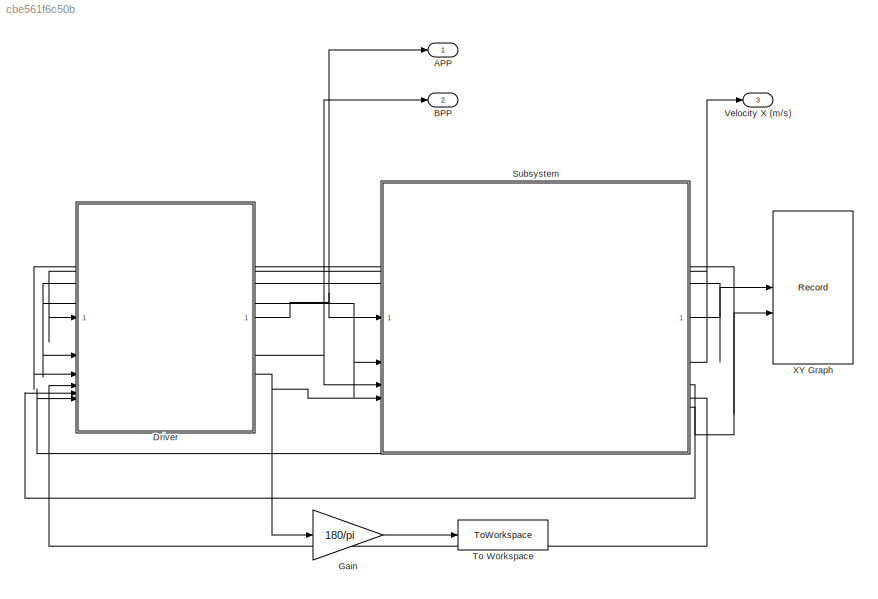
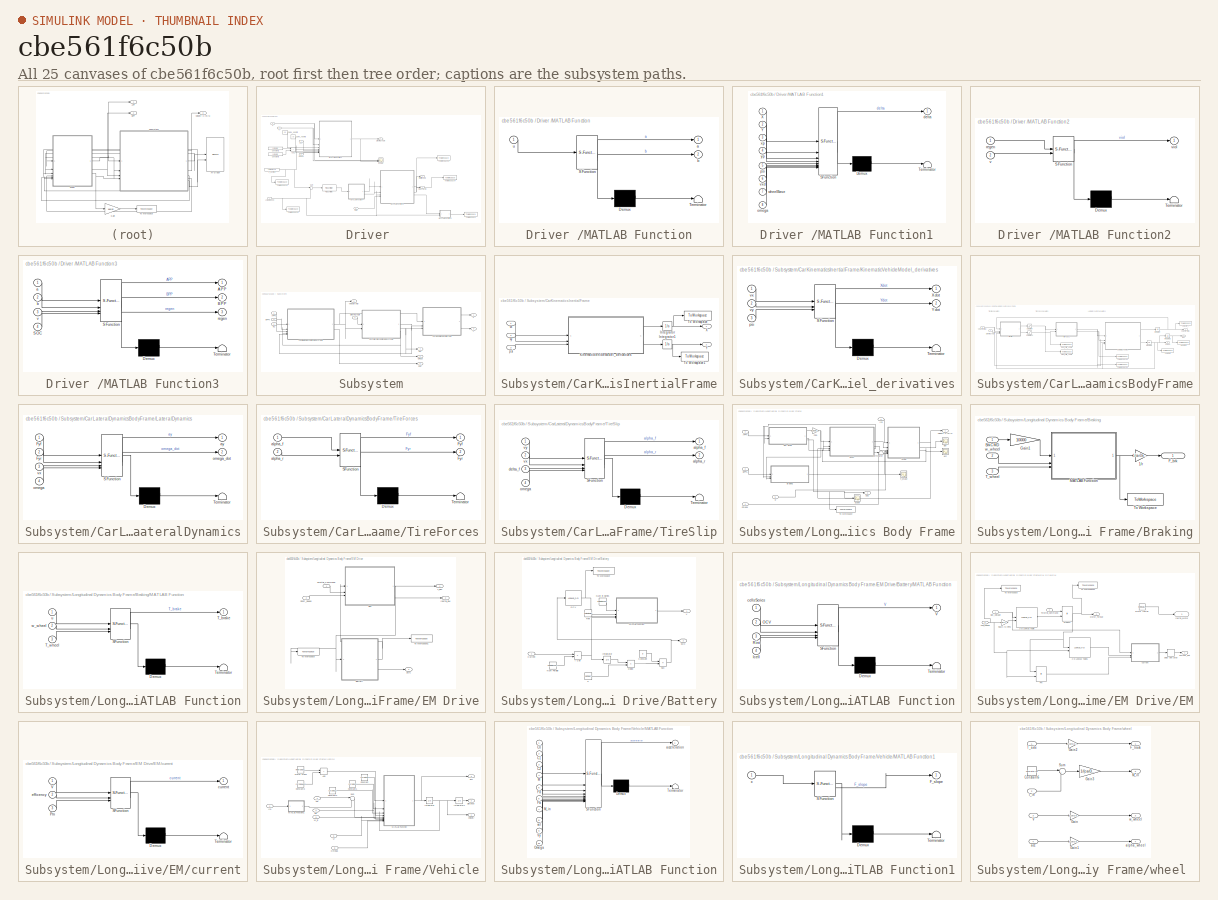
[diagram: thumbnail index - all 25 canvases of the model, root first then tree order]
MODEL slx_cbe561f6c50b
KIND model
CONFIG AbsTol = auto
CONFIG EnableMultiTasking = off
CONFIG FixedStep = auto
CONFIG MaxStep = auto
CONFIG MinStep = auto
CONFIG RelTol = 1e-3
CONFIG SampleTimeConstraint = Unconstrained
CONFIG SolverName = VariableStepAuto
CONFIG StartTime = 0.0
CONFIG StopTime = 3600
BLOCK [Outport] APP
BLOCK [Outport] BPP
  Port = 2
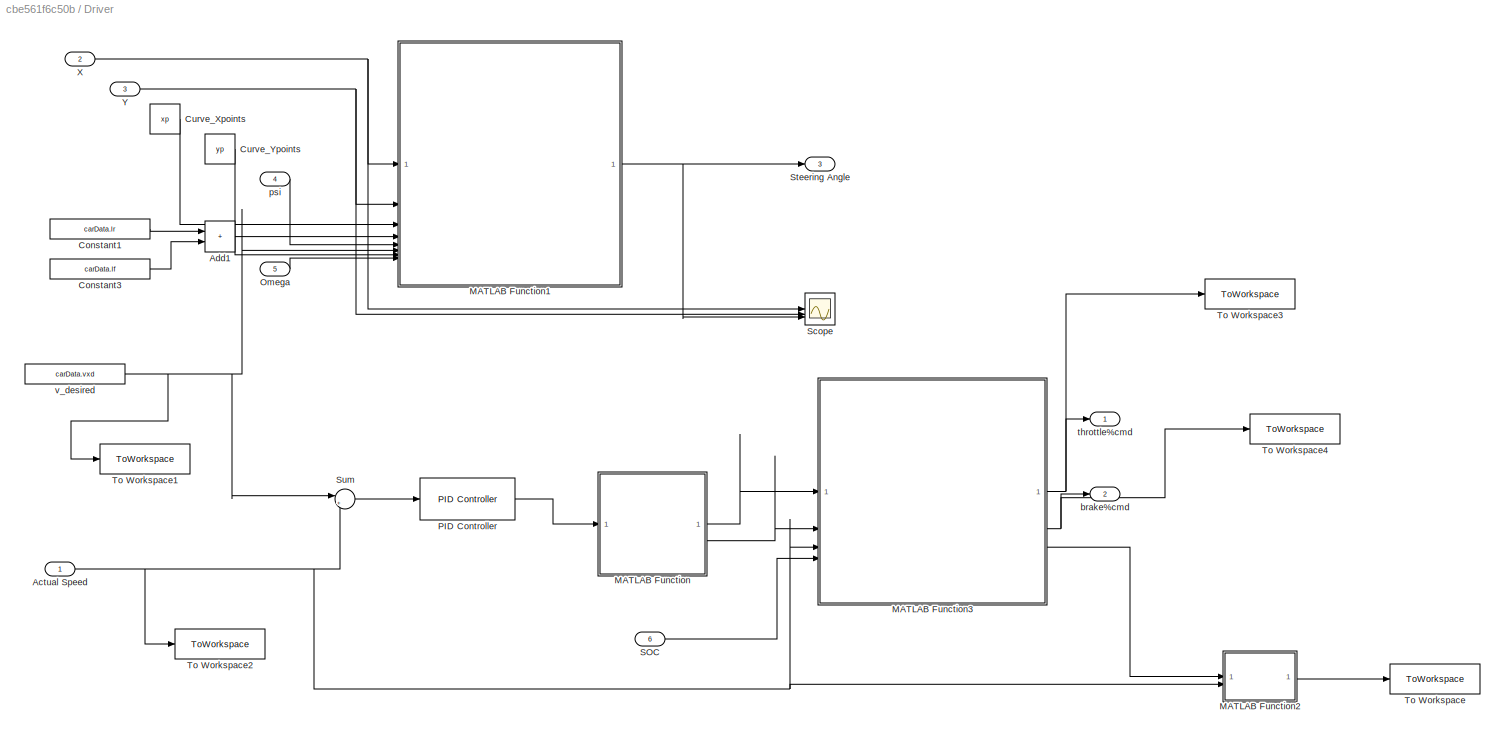
BLOCK [SubSystem] Driver 
BLOCK [Inport] Driver /Actual Speed
BLOCK [Sum] Driver /Add1
  IconShape = rectangular
BLOCK [Constant] Driver /Constant1
  Value = carData.lr
BLOCK [Constant] Driver /Constant3
  Value = carData.lf
BLOCK [Constant] Driver /Curve_Xpoints
  Value = xp
  VectorParams1D = off
BLOCK [Constant] Driver /Curve_Ypoints
  Value = yp
  VectorParams1D = off
BLOCK [SubSystem] Driver /MATLAB Function
  ErrorFcn = Stateflow.Translate.translate
  PermitHierarchicalResolution = ExplicitOnly
  SFBlockType = MATLAB Function
  TreatAsAtomicUnit = on
BLOCK [Demux] Driver /MATLAB Function/ Demux 
  Outputs = 1
BLOCK [S-Function] Driver /MATLAB Function/ SFunction 
  EnableBusSupport = on
  FunctionName = sf_sfun
  PortCounts = [1 3]
  SFcnIsStateOwnerBlock = off
  SFunctionDeploymentMode = off
  Tag = Stateflow S-Function 1
BLOCK [Terminator] Driver /MATLAB Function/ Terminator 
BLOCK [Outport] Driver /MATLAB Function/a
BLOCK [Outport] Driver /MATLAB Function/b
  Port = 2
BLOCK [Inport] Driver /MATLAB Function/u
BLOCK [SubSystem] Driver /MATLAB Function1
  ErrorFcn = Stateflow.Translate.translate
  PermitHierarchicalResolution = ExplicitOnly
  SFBlockType = MATLAB Function
  TreatAsAtomicUnit = on
BLOCK [Demux] Driver /MATLAB Function1/ Demux 
  Outputs = 1
BLOCK [S-Function] Driver /MATLAB Function1/ SFunction 
  EnableBusSupport = on
  FunctionName = sf_sfun
  PortCounts = [8 2]
  SFcnIsStateOwnerBlock = off
  SFunctionDeploymentMode = off
  Tag = Stateflow S-Function 11
BLOCK [Terminator] Driver /MATLAB Function1/ Terminator 
BLOCK [Inport] Driver /MATLAB Function1/X
BLOCK [Inport] Driver /MATLAB Function1/Y
  Port = 2
BLOCK [Outport] Driver /MATLAB Function1/delta
BLOCK [Inport] Driver /MATLAB Function1/omega
  Port = 8
BLOCK [Inport] Driver /MATLAB Function1/psi
  Port = 5
BLOCK [Inport] Driver /MATLAB Function1/vxd
  Port = 6
BLOCK [Inport] Driver /MATLAB Function1/wheelBase
  Port = 7
BLOCK [Inport] Driver /MATLAB Function1/xp
  Port = 3
BLOCK [Inport] Driver /MATLAB Function1/yp
  Port = 4
BLOCK [SubSystem] Driver /MATLAB Function2
  ErrorFcn = Stateflow.Translate.translate
  PermitHierarchicalResolution = ExplicitOnly
  SFBlockType = MATLAB Function
  TreatAsAtomicUnit = on
BLOCK [Demux] Driver /MATLAB Function2/ Demux 
  Outputs = 1
BLOCK [S-Function] Driver /MATLAB Function2/ SFunction 
  EnableBusSupport = on
  FunctionName = sf_sfun
  PortCounts = [2 2]
  SFcnIsStateOwnerBlock = off
  SFunctionDeploymentMode = off
  Tag = Stateflow S-Function 10
BLOCK [Terminator] Driver /MATLAB Function2/ Terminator 
BLOCK [Inport] Driver /MATLAB Function2/regen
BLOCK [Inport] Driver /MATLAB Function2/v
  Port = 2
BLOCK [Outport] Driver /MATLAB Function2/viol
BLOCK [SubSystem] Driver /MATLAB Function3
  ErrorFcn = Stateflow.Translate.translate
  PermitHierarchicalResolution = ExplicitOnly
  SFBlockType = MATLAB Function
  TreatAsAtomicUnit = on
BLOCK [Demux] Driver /MATLAB Function3/ Demux 
  Outputs = 1
BLOCK [S-Function] Driver /MATLAB Function3/ SFunction 
  EnableBusSupport = on
  FunctionName = sf_sfun
  PortCounts = [4 4]
  SFcnIsStateOwnerBlock = off
  SFunctionDeploymentMode = off
  Tag = Stateflow S-Function 12
BLOCK [Terminator] Driver /MATLAB Function3/ Terminator 
BLOCK [Outport] Driver /MATLAB Function3/APP
BLOCK [Outport] Driver /MATLAB Function3/BPP
  Port = 2
BLOCK [Inport] Driver /MATLAB Function3/SOC
  Port = 4
BLOCK [Inport] Driver /MATLAB Function3/a
BLOCK [Inport] Driver /MATLAB Function3/b
  Port = 2
BLOCK [Outport] Driver /MATLAB Function3/regen
  Port = 3
BLOCK [Inport] Driver /MATLAB Function3/v
  Port = 3
BLOCK [Inport] Driver /Omega
  Port = 5
BLOCK [Reference] Driver /PID Controller  REF=slpidlib/PID Controller
  SourceBlock = slpidlib/PID Controller
  SourceType = PID 1dof
BLOCK [Inport] Driver /SOC
  Port = 6
BLOCK [Scope] Driver /Scope
  Floating = off
  NumInputPorts = 3
  ScopeSpecificationString = Simulink.scopes.TimeScopeBlockCfg('CurrentConfiguration', extmgr.ConfigurationSet(extmgr.Configuration('Core','General UI',true),extmgr.Configuration('Core','Source UI',true),extmgr.Configuration('Sources','WiredSimulink',true,'DataLoggingVariableName','ScopeData1'),extmgr.Configuration('Visuals','Time Domain',true,'SerializedDisplays',{struct('MinYLimReal','-2.36096','MaxYLimReal','21.24864','YLa...<+2753ch>
BLOCK [Outport] Driver /Steering Angle
  Port = 3
BLOCK [Sum] Driver /Sum
  Inputs = |+-
BLOCK [ToWorkspace] Driver /To Workspace
  FixptAsFi = on
  MaxDataPoints = inf
  SampleTime = -1
  SaveFormat = Timeseries
  VariableName = brake
BLOCK [ToWorkspace] Driver /To Workspace1
  FixptAsFi = on
  MaxDataPoints = inf
  SampleTime = -1
  SaveFormat = Timeseries
  VariableName = veh_speed_desd
BLOCK [ToWorkspace] Driver /To Workspace2
  FixptAsFi = on
  MaxDataPoints = inf
  SampleTime = -1
  SaveFormat = Timeseries
  VariableName = veh_speed
BLOCK [ToWorkspace] Driver /To Workspace3
  FixptAsFi = on
  MaxDataPoints = inf
  SampleTime = -1
  SaveFormat = Timeseries
  VariableName = alpha
BLOCK [ToWorkspace] Driver /To Workspace4
  FixptAsFi = on
  MaxDataPoints = inf
  SampleTime = -1
  SaveFormat = Timeseries
  VariableName = beta
BLOCK [Inport] Driver /X
  Port = 2
BLOCK [Inport] Driver /Y
  Port = 3
BLOCK [Outport] Driver /brake%cmd 
  Port = 2
BLOCK [Inport] Driver /psi
  Port = 4
BLOCK [Outport] Driver /throttle%cmd
BLOCK [Constant] Driver /v_desired
  Value = carData.vxd
BLOCK [Gain] Gain
  Gain = 180/pi
BLOCK [SubSystem] Subsystem
BLOCK [Inport] Subsystem/APP%
BLOCK [Inport] Subsystem/BPP%
  Port = 3
BLOCK [SubSystem] Subsystem/CarKinematicsInertialFrame
BLOCK [Integrator] Subsystem/CarKinematicsInertialFrame/Integrator
  InitialCondition = carData.init.X0
BLOCK [Integrator] Subsystem/CarKinematicsInertialFrame/Integrator1
  InitialCondition = carData.init.Y0
BLOCK [SubSystem] Subsystem/CarKinematicsInertialFrame/KinematicVehicleModel_derivatives
  ErrorFcn = Stateflow.Translate.translate
  PermitHierarchicalResolution = ExplicitOnly
  SFBlockType = MATLAB Function
  TreatAsAtomicUnit = on
BLOCK [Demux] Subsystem/CarKinematicsInertialFrame/KinematicVehicleModel_derivatives/ Demux 
  Outputs = 1
BLOCK [S-Function] Subsystem/CarKinematicsInertialFrame/KinematicVehicleModel_derivatives/ SFunction 
  EnableBusSupport = on
  FunctionName = sf_sfun
  PortCounts = [3 3]
  SFcnIsStateOwnerBlock = off
  SFunctionDeploymentMode = off
  Tag = Stateflow S-Function 5
BLOCK [Terminator] Subsystem/CarKinematicsInertialFrame/KinematicVehicleModel_derivatives/ Terminator 
BLOCK [Outport] Subsystem/CarKinematicsInertialFrame/KinematicVehicleModel_derivatives/Xdot
BLOCK [Outport] Subsystem/CarKinematicsInertialFrame/KinematicVehicleModel_derivatives/Ydot
  Port = 2
BLOCK [Inport] Subsystem/CarKinematicsInertialFrame/KinematicVehicleModel_derivatives/psi
  Port = 3
BLOCK [Inport] Subsystem/CarKinematicsInertialFrame/KinematicVehicleModel_derivatives/vx
BLOCK [Inport] Subsystem/CarKinematicsInertialFrame/KinematicVehicleModel_derivatives/vy
  Port = 2
BLOCK [ToWorkspace] Subsystem/CarKinematicsInertialFrame/To Workspace
  FixptAsFi = on
  MaxDataPoints = inf
  SampleTime = -1
  SaveFormat = Timeseries
  VariableName = X
BLOCK [ToWorkspace] Subsystem/CarKinematicsInertialFrame/To Workspace1
  FixptAsFi = on
  MaxDataPoints = inf
  SampleTime = -1
  SaveFormat = Timeseries
  VariableName = Y
BLOCK [Outport] Subsystem/CarKinematicsInertialFrame/X
BLOCK [Outport] Subsystem/CarKinematicsInertialFrame/Y
  Port = 2
BLOCK [Inport] Subsystem/CarKinematicsInertialFrame/psi
  Port = 3
BLOCK [Inport] Subsystem/CarKinematicsInertialFrame/vx
BLOCK [Inport] Subsystem/CarKinematicsInertialFrame/vy
  Port = 2
BLOCK [SubSystem] Subsystem/CarLateralDynamicsBodyFrame
BLOCK [ToWorkspace] Subsystem/CarLateralDynamicsBodyFrame/Front_Slip_Angle
  FixptAsFi = on
  MaxDataPoints = inf
  SampleTime = -1
  SaveFormat = Timeseries
  VariableName = alpha_f
BLOCK [ToWorkspace] Subsystem/CarLateralDynamicsBodyFrame/Heading
  FixptAsFi = on
  MaxDataPoints = inf
  SampleTime = -1
  SaveFormat = Timeseries
  VariableName = psi
BLOCK [Integrator] Subsystem/CarLateralDynamicsBodyFrame/Integrator
  InitialCondition = carData.init.vy0
BLOCK [Integrator] Subsystem/CarLateralDynamicsBodyFrame/Integrator1
  InitialCondition = carData.init.omega0
BLOCK [Integrator] Subsystem/CarLateralDynamicsBodyFrame/Integrator2
  InitialCondition = carData.init.psi0
BLOCK [SubSystem] Subsystem/CarLateralDynamicsBodyFrame/LateralDynamics
  ErrorFcn = Stateflow.Translate.translate
  PermitHierarchicalResolution = ExplicitOnly
  SFBlockType = MATLAB Function
  TreatAsAtomicUnit = on
BLOCK [Demux] Subsystem/CarLateralDynamicsBodyFrame/LateralDynamics/ Demux 
  Outputs = 1
BLOCK [S-Function] Subsystem/CarLateralDynamicsBodyFrame/LateralDynamics/ SFunction 
  EnableBusSupport = on
  FunctionName = sf_sfun
  Parameters = obj
  PortCounts = [4 3]
  SFcnIsStateOwnerBlock = off
  SFunctionDeploymentMode = off
  Tag = Stateflow S-Function 6
BLOCK [Terminator] Subsystem/CarLateralDynamicsBodyFrame/LateralDynamics/ Terminator 
BLOCK [Inport] Subsystem/CarLateralDynamicsBodyFrame/LateralDynamics/Fyf
BLOCK [Inport] Subsystem/CarLateralDynamicsBodyFrame/LateralDynamics/Fyr
  Port = 2
BLOCK [Outport] Subsystem/CarLateralDynamicsBodyFrame/LateralDynamics/ay
BLOCK [Inport] Subsystem/CarLateralDynamicsBodyFrame/LateralDynamics/omega
  Port = 4
BLOCK [Outport] Subsystem/CarLateralDynamicsBodyFrame/LateralDynamics/omega_dot
  Port = 2
BLOCK [Inport] Subsystem/CarLateralDynamicsBodyFrame/LateralDynamics/vx
  Port = 3
BLOCK [ToWorkspace] Subsystem/CarLateralDynamicsBodyFrame/Rear_Slip_Angle
  FixptAsFi = on
  MaxDataPoints = inf
  SampleTime = -1
  SaveFormat = Timeseries
  VariableName = alpha_r
BLOCK [Saturate] Subsystem/CarLateralDynamicsBodyFrame/Saturation
  LowerLimit = -carData.maxAlpha
  UpperLimit = carData.maxAlpha
BLOCK [Saturate] Subsystem/CarLateralDynamicsBodyFrame/Saturation1
  LowerLimit = -carData.maxAlpha
  UpperLimit = carData.maxAlpha
BLOCK [Inport] Subsystem/CarLateralDynamicsBodyFrame/Steering Angle
BLOCK [SubSystem] Subsystem/CarLateralDynamicsBodyFrame/TireForces
  ErrorFcn = Stateflow.Translate.translate
  PermitHierarchicalResolution = ExplicitOnly
  SFBlockType = MATLAB Function
  TreatAsAtomicUnit = on
BLOCK [Demux] Subsystem/CarLateralDynamicsBodyFrame/TireForces/ Demux 
  Outputs = 1
BLOCK [S-Function] Subsystem/CarLateralDynamicsBodyFrame/TireForces/ SFunction 
  EnableBusSupport = on
  FunctionName = sf_sfun
  Parameters = obj
  PortCounts = [2 3]
  SFcnIsStateOwnerBlock = off
  SFunctionDeploymentMode = off
  Tag = Stateflow S-Function 8
BLOCK [Terminator] Subsystem/CarLateralDynamicsBodyFrame/TireForces/ Terminator 
BLOCK [Outport] Subsystem/CarLateralDynamicsBodyFrame/TireForces/Fyf
BLOCK [Outport] Subsystem/CarLateralDynamicsBodyFrame/TireForces/Fyr
  Port = 2
BLOCK [Inport] Subsystem/CarLateralDynamicsBodyFrame/TireForces/alpha_f
BLOCK [Inport] Subsystem/CarLateralDynamicsBodyFrame/TireForces/alpha_r
  Port = 2
BLOCK [SubSystem] Subsystem/CarLateralDynamicsBodyFrame/TireSlip
  ErrorFcn = Stateflow.Translate.translate
  PermitHierarchicalResolution = ExplicitOnly
  SFBlockType = MATLAB Function
  TreatAsAtomicUnit = on
BLOCK [Demux] Subsystem/CarLateralDynamicsBodyFrame/TireSlip/ Demux 
  Outputs = 1
BLOCK [S-Function] Subsystem/CarLateralDynamicsBodyFrame/TireSlip/ SFunction 
  EnableBusSupport = on
  FunctionName = sf_sfun
  Parameters = obj
  PortCounts = [4 3]
  SFcnIsStateOwnerBlock = off
  SFunctionDeploymentMode = off
  Tag = Stateflow S-Function 9
BLOCK [Terminator] Subsystem/CarLateralDynamicsBodyFrame/TireSlip/ Terminator 
BLOCK [Outport] Subsystem/CarLateralDynamicsBodyFrame/TireSlip/alpha_f
BLOCK [Outport] Subsystem/CarLateralDynamicsBodyFrame/TireSlip/alpha_r
  Port = 2
BLOCK [Inport] Subsystem/CarLateralDynamicsBodyFrame/TireSlip/delta_f
  Port = 3
BLOCK [Inport] Subsystem/CarLateralDynamicsBodyFrame/TireSlip/omega
  Port = 4
BLOCK [Inport] Subsystem/CarLateralDynamicsBodyFrame/TireSlip/vx
  Port = 2
BLOCK [Inport] Subsystem/CarLateralDynamicsBodyFrame/TireSlip/vy
BLOCK [ToWorkspace] Subsystem/CarLateralDynamicsBodyFrame/To Workspace5
  FixptAsFi = on
  MaxDataPoints = inf
  SampleTime = -1
  SaveFormat = Timeseries
  VariableName = Fyf
BLOCK [ToWorkspace] Subsystem/CarLateralDynamicsBodyFrame/To Workspace6
  FixptAsFi = on
  MaxDataPoints = inf
  SampleTime = -1
  SaveFormat = Timeseries
  VariableName = Fyr
BLOCK [Inport] Subsystem/CarLateralDynamicsBodyFrame/Velocity X (m//s)
  Port = 2
BLOCK [Outport] Subsystem/CarLateralDynamicsBodyFrame/Velocity Y (m//s)
BLOCK [ToWorkspace] Subsystem/CarLateralDynamicsBodyFrame/Velocity_Y
  FixptAsFi = on
  MaxDataPoints = inf
  SampleTime = -1
  SaveFormat = Timeseries
  VariableName = vy
BLOCK [ToWorkspace] Subsystem/CarLateralDynamicsBodyFrame/Yaw Rate
  FixptAsFi = on
  MaxDataPoints = inf
  SampleTime = -1
  SaveFormat = Timeseries
  VariableName = omega
BLOCK [Outport] Subsystem/CarLateralDynamicsBodyFrame/omega
  Port = 3
BLOCK [Outport] Subsystem/CarLateralDynamicsBodyFrame/psi
  Port = 2
BLOCK [Inport] Subsystem/In2
  Port = 2
BLOCK [SubSystem] Subsystem/Longitudinal Dynamics Body Frame
BLOCK [Inport] Subsystem/Longitudinal Dynamics Body Frame/APP%
BLOCK [Inport] Subsystem/Longitudinal Dynamics Body Frame/BPP%
  Port = 2
BLOCK [SubSystem] Subsystem/Longitudinal Dynamics Body Frame/Braking
BLOCK [Gain] Subsystem/Longitudinal Dynamics Body Frame/Braking/1//r
  Gain = 1/carData.r
BLOCK [Inport] Subsystem/Longitudinal Dynamics Body Frame/Braking/BrkCMD 
BLOCK [Outport] Subsystem/Longitudinal Dynamics Body Frame/Braking/F_brk 
  VectorParamsAs1DForOutWhenUnconnected = off
BLOCK [Gain] Subsystem/Longitudinal Dynamics Body Frame/Braking/Gain1
  Gain = 10000
BLOCK [SubSystem] Subsystem/Longitudinal Dynamics Body Frame/Braking/MATLAB Function
  ErrorFcn = Stateflow.Translate.translate
  PermitHierarchicalResolution = ExplicitOnly
  SFBlockType = MATLAB Function
  TreatAsAtomicUnit = on
BLOCK [Demux] Subsystem/Longitudinal Dynamics Body Frame/Braking/MATLAB Function/ Demux 
  Outputs = 1
BLOCK [S-Function] Subsystem/Longitudinal Dynamics Body Frame/Braking/MATLAB Function/ SFunction 
  EnableBusSupport = on
  FunctionName = sf_sfun
  PortCounts = [3 2]
  SFcnIsStateOwnerBlock = off
  SFunctionDeploymentMode = off
  Tag = Stateflow S-Function 7
BLOCK [Terminator] Subsystem/Longitudinal Dynamics Body Frame/Braking/MATLAB Function/ Terminator 
BLOCK [Outport] Subsystem/Longitudinal Dynamics Body Frame/Braking/MATLAB Function/T_brake
BLOCK [Inport] Subsystem/Longitudinal Dynamics Body Frame/Braking/MATLAB Function/T_wheel
  Port = 3
BLOCK [Inport] Subsystem/Longitudinal Dynamics Body Frame/Braking/MATLAB Function/u
BLOCK [Inport] Subsystem/Longitudinal Dynamics Body Frame/Braking/MATLAB Function/w_wheel
  Port = 2
BLOCK [Inport] Subsystem/Longitudinal Dynamics Body Frame/Braking/T_wheel
  Port = 3
BLOCK [ToWorkspace] Subsystem/Longitudinal Dynamics Body Frame/Braking/To Workspace
  FixptAsFi = on
  MaxDataPoints = inf
  SampleTime = -1
  SaveFormat = Timeseries
  VariableName = brake_torque
BLOCK [Inport] Subsystem/Longitudinal Dynamics Body Frame/Braking/w_wheel 
  Port = 2
BLOCK [SubSystem] Subsystem/Longitudinal Dynamics Body Frame/EM Drive
BLOCK [SubSystem] Subsystem/Longitudinal Dynamics Body Frame/EM Drive/Battery
BLOCK [Constant] Subsystem/Longitudinal Dynamics Body Frame/EM Drive/Battery/C
  Value = batData.C
BLOCK [Constant] Subsystem/Longitudinal Dynamics Body Frame/EM Drive/Battery/Constant
  Value = .8
BLOCK [Inport] Subsystem/Longitudinal Dynamics Body Frame/EM Drive/Battery/Current
BLOCK [Product] Subsystem/Longitudinal Dynamics Body Frame/EM Drive/Battery/Divide
  Inputs = */
BLOCK [Product] Subsystem/Longitudinal Dynamics Body Frame/EM Drive/Battery/I Cell
  Inputs = */
BLOCK [Integrator] Subsystem/Longitudinal Dynamics Body Frame/EM Drive/Battery/Integrator
BLOCK [SubSystem] Subsystem/Longitudinal Dynamics Body Frame/EM Drive/Battery/MATLAB Function
  ErrorFcn = Stateflow.Translate.translate
  PermitHierarchicalResolution = ExplicitOnly
  SFBlockType = MATLAB Function
  TreatAsAtomicUnit = on
BLOCK [Demux] Subsystem/Longitudinal Dynamics Body Frame/EM Drive/Battery/MATLAB Function/ Demux 
  Outputs = 1
BLOCK [S-Function] Subsystem/Longitudinal Dynamics Body Frame/EM Drive/Battery/MATLAB Function/ SFunction 
  EnableBusSupport = on
  FunctionName = sf_sfun
  PortCounts = [4 2]
  SFcnIsStateOwnerBlock = off
  SFunctionDeploymentMode = off
  Tag = Stateflow S-Function 4
BLOCK [Terminator] Subsystem/Longitudinal Dynamics Body Frame/EM Drive/Battery/MATLAB Function/ Terminator 
BLOCK [Inport] Subsystem/Longitudinal Dynamics Body Frame/EM Drive/Battery/MATLAB Function/Icell
  Port = 4
BLOCK [Inport] Subsystem/Longitudinal Dynamics Body Frame/EM Drive/Battery/MATLAB Function/OCV
  Port = 2
BLOCK [Inport] Subsystem/Longitudinal Dynamics Body Frame/EM Drive/Battery/MATLAB Function/Rint
  Port = 3
BLOCK [Outport] Subsystem/Longitudinal Dynamics Body Frame/EM Drive/Battery/MATLAB Function/V
BLOCK [Inport] Subsystem/Longitudinal Dynamics Body Frame/EM Drive/Battery/MATLAB Function/cellsSeries
BLOCK [Constant] Subsystem/Longitudinal Dynamics Body Frame/EM Drive/Battery/Num Parallel
  Value = batData.numParallel
BLOCK [Constant] Subsystem/Longitudinal Dynamics Body Frame/EM Drive/Battery/Num in Series
  Value = batData.numSeries
BLOCK [Lookup_n-D] Subsystem/Longitudinal Dynamics Body Frame/EM Drive/Battery/OCV
  BreakpointsForDimension1 = batData.SOC
  BreakpointsForDimension2 = [1:3]
  InputPortMap = u0
  InternalRulePriority = Speed
  NumberOfTableDimensions = 1
  RndMeth = Simplest
  Table = batData.OCV
BLOCK [Constant] Subsystem/Longitudinal Dynamics Body Frame/EM Drive/Battery/Rint
  Value = batData.Rint
BLOCK [Outport] Subsystem/Longitudinal Dynamics Body Frame/EM Drive/Battery/SOC
  Port = 2
BLOCK [Sum] Subsystem/Longitudinal Dynamics Body Frame/EM Drive/Battery/SoC
  IconShape = rectangular
  Inputs = +-
BLOCK [ToWorkspace] Subsystem/Longitudinal Dynamics Body Frame/EM Drive/Battery/To Workspace
  FixptAsFi = on
  MaxDataPoints = inf
  SampleTime = -1
  SaveFormat = Timeseries
  VariableName = OCV
BLOCK [Outport] Subsystem/Longitudinal Dynamics Body Frame/EM Drive/Battery/V
BLOCK [SubSystem] Subsystem/Longitudinal Dynamics Body Frame/EM Drive/EM
BLOCK [Lookup_n-D] Subsystem/Longitudinal Dynamics Body Frame/EM Drive/EM/2-D Lookup Table
  BreakpointsForDimension1 = motorData.vbus
  BreakpointsForDimension2 = motorData.rpm
  InputPortMap = u0,u1
  InternalRulePriority = Speed
  RndMeth = Simplest
  Table = motorData.maxtorque
BLOCK [Lookup_n-D] Subsystem/Longitudinal Dynamics Body Frame/EM Drive/EM/2-D Lookup Table1
  BreakpointsForDimension1 = motorData.eta_torque
  BreakpointsForDimension2 = motorData.eta_speed
  InputPortMap = u0,u1
  InternalRulePriority = Speed
  RndMeth = Simplest
  Table = motorData.eta_val
BLOCK [Inport] Subsystem/Longitudinal Dynamics Body Frame/EM Drive/EM/Axel_speed
  Port = 3
BLOCK [Inport] Subsystem/Longitudinal Dynamics Body Frame/EM Drive/EM/Bat_Voltage
BLOCK [Outport] Subsystem/Longitudinal Dynamics Body Frame/EM Drive/EM/Current_bat
BLOCK [Delay] Subsystem/Longitudinal Dynamics Body Frame/EM Drive/EM/Delay One Step
  DelayLength = 1
  InputPortMap = u0
BLOCK [Outport] Subsystem/Longitudinal Dynamics Body Frame/EM Drive/EM/Inertia_Motor
  Port = 3
BLOCK [Constant] Subsystem/Longitudinal Dynamics Body Frame/EM Drive/EM/Motor Inertia
  Value = motorData.Inertia
BLOCK [Outport] Subsystem/Longitudinal Dynamics Body Frame/EM Drive/EM/Motor_Torque
  Port = 2
BLOCK [Product] Subsystem/Longitudinal Dynamics Body Frame/EM Drive/EM/Pm
BLOCK [Product] Subsystem/Longitudinal Dynamics Body Frame/EM Drive/EM/Product
BLOCK [Gain] Subsystem/Longitudinal Dynamics Body Frame/EM Drive/EM/Rad//s to RPM
  Gain = 60/(2*pi)
BLOCK [Inport] Subsystem/Longitudinal Dynamics Body Frame/EM Drive/EM/Throttle_Command
  Port = 2
BLOCK [ToWorkspace] Subsystem/Longitudinal Dynamics Body Frame/EM Drive/EM/To Workspace
  FixptAsFi = on
  MaxDataPoints = inf
  SampleTime = -1
  SaveFormat = Timeseries
  VariableName = motor_speed
BLOCK [ToWorkspace] Subsystem/Longitudinal Dynamics Body Frame/EM Drive/EM/To Workspace1
  FixptAsFi = on
  MaxDataPoints = inf
  SampleTime = -1
  SaveFormat = Timeseries
  VariableName = motor_torque
BLOCK [SubSystem] Subsystem/Longitudinal Dynamics Body Frame/EM Drive/EM/current
  ErrorFcn = Stateflow.Translate.translate
  PermitHierarchicalResolution = ExplicitOnly
  SFBlockType = MATLAB Function
  TreatAsAtomicUnit = on
BLOCK [Demux] Subsystem/Longitudinal Dynamics Body Frame/EM Drive/EM/current/ Demux 
  Outputs = 1
BLOCK [S-Function] Subsystem/Longitudinal Dynamics Body Frame/EM Drive/EM/current/ SFunction 
  EnableBusSupport = on
  FunctionName = sf_sfun
  PortCounts = [3 2]
  SFcnIsStateOwnerBlock = off
  SFunctionDeploymentMode = off
  Tag = Stateflow S-Function 3
BLOCK [Terminator] Subsystem/Longitudinal Dynamics Body Frame/EM Drive/EM/current/ Terminator 
BLOCK [Inport] Subsystem/Longitudinal Dynamics Body Frame/EM Drive/EM/current/Pm
  Port = 3
BLOCK [Inport] Subsystem/Longitudinal Dynamics Body Frame/EM Drive/EM/current/V
BLOCK [Outport] Subsystem/Longitudinal Dynamics Body Frame/EM Drive/EM/current/current
BLOCK [Inport] Subsystem/Longitudinal Dynamics Body Frame/EM Drive/EM/current/efficency
  Port = 2
BLOCK [Outport] Subsystem/Longitudinal Dynamics Body Frame/EM Drive/Inertia_EM
  Port = 2
BLOCK [Outport] Subsystem/Longitudinal Dynamics Body Frame/EM Drive/SOC
  Port = 3
BLOCK [Inport] Subsystem/Longitudinal Dynamics Body Frame/EM Drive/Shaft_Speed
  Port = 2
BLOCK [Outport] Subsystem/Longitudinal Dynamics Body Frame/EM Drive/T_EM
BLOCK [Inport] Subsystem/Longitudinal Dynamics Body Frame/EM Drive/Throttle_Command
BLOCK [ToWorkspace] Subsystem/Longitudinal Dynamics Body Frame/EM Drive/To Workspace
  FixptAsFi = on
  MaxDataPoints = inf
  SampleTime = -1
  SaveFormat = Timeseries
  VariableName = I_bat
BLOCK [ToWorkspace] Subsystem/Longitudinal Dynamics Body Frame/EM Drive/To Workspace1
  FixptAsFi = on
  MaxDataPoints = inf
  SampleTime = -1
  SaveFormat = Timeseries
  VariableName = V_bat
BLOCK [Gain] Subsystem/Longitudinal Dynamics Body Frame/FDG
  Gain = carData.FDG
BLOCK [Scope] Subsystem/Longitudinal Dynamics Body Frame/F_brake
  Floating = off
  NumInputPorts = 1
  ScopeSpecificationString = Simulink.scopes.TimeScopeBlockCfg('CurrentConfiguration', extmgr.ConfigurationSet(extmgr.Configuration('Core','General UI',true),extmgr.Configuration('Core','Source UI',true),extmgr.Configuration('Sources','WiredSimulink',true,'DataLoggingVariableName','ScopeData2'),extmgr.Configuration('Visuals','Time Domain',true,'SerializedDisplays',{struct('MinYLimReal','-450.00000','MaxYLimReal','4050.00000',...<+1384ch>
BLOCK [Inport] Subsystem/Longitudinal Dynamics Body Frame/In3
  Port = 3
BLOCK [Inport] Subsystem/Longitudinal Dynamics Body Frame/Omega
  Port = 4
BLOCK [Outport] Subsystem/Longitudinal Dynamics Body Frame/SOC
  Port = 2
BLOCK [Scope] Subsystem/Longitudinal Dynamics Body Frame/Scope
  Floating = off
  NumInputPorts = 1
  ScopeSpecificationString = Simulink.scopes.TimeScopeBlockCfg('CurrentConfiguration', extmgr.ConfigurationSet(extmgr.Configuration('Core','General UI',true),extmgr.Configuration('Core','Source UI',true),extmgr.Configuration('Sources','WiredSimulink',true,'DataLoggingVariableName','ScopeData1'),extmgr.Configuration('Visuals','Time Domain',true,'SerializedDisplays',{struct('MinYLimReal','0.76311','MaxYLimReal','0.8041','YLabel...<+1413ch>
BLOCK [Terminator] Subsystem/Longitudinal Dynamics Body Frame/Terminator
BLOCK [ToWorkspace] Subsystem/Longitudinal Dynamics Body Frame/To Workspace
  FixptAsFi = on
  MaxDataPoints = inf
  SampleTime = -1
  SaveFormat = Timeseries
  VariableName = SOC
BLOCK [SubSystem] Subsystem/Longitudinal Dynamics Body Frame/Vehicle
BLOCK [Sum] Subsystem/Longitudinal Dynamics Body Frame/Vehicle/Add
  IconShape = rectangular
BLOCK [Constant] Subsystem/Longitudinal Dynamics Body Frame/Vehicle/Constant
  Value = carData.C0
BLOCK [Constant] Subsystem/Longitudinal Dynamics Body Frame/Vehicle/Constant1
  Value = carData.C1
BLOCK [Constant] Subsystem/Longitudinal Dynamics Body Frame/Vehicle/Constant2
  Value = carData.C2
BLOCK [Constant] Subsystem/Longitudinal Dynamics Body Frame/Vehicle/Constant3
  Value = carData.Mass
BLOCK [Outport] Subsystem/Longitudinal Dynamics Body Frame/Vehicle/Distance 
  Port = 2
  VectorParamsAs1DForOutWhenUnconnected = off
BLOCK [Inport] Subsystem/Longitudinal Dynamics Body Frame/Vehicle/Fb 
  Port = 4
BLOCK [Inport] Subsystem/Longitudinal Dynamics Body Frame/Vehicle/Fw 
  Port = 2
BLOCK [Inport] Subsystem/Longitudinal Dynamics Body Frame/Vehicle/In1
BLOCK [Integrator] Subsystem/Longitudinal Dynamics Body Frame/Vehicle/Integrator
  LimitOutput = on
  LowerSaturationLimit = 0
BLOCK [Integrator] Subsystem/Longitudinal Dynamics Body Frame/Vehicle/Integrator1
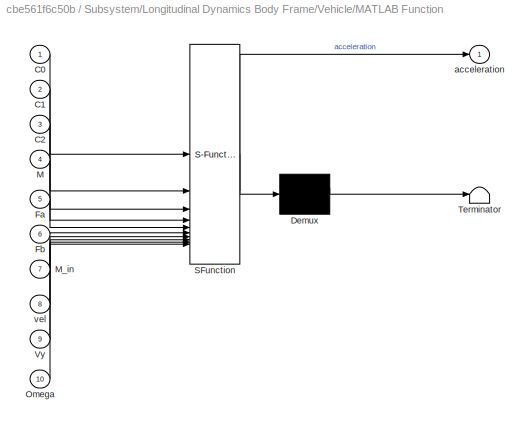
BLOCK [SubSystem] Subsystem/Longitudinal Dynamics Body Frame/Vehicle/MATLAB Function
  ErrorFcn = Stateflow.Translate.translate
  PermitHierarchicalResolution = ExplicitOnly
  SFBlockType = MATLAB Function
  TreatAsAtomicUnit = on
BLOCK [Demux] Subsystem/Longitudinal Dynamics Body Frame/Vehicle/MATLAB Function/ Demux 
  Outputs = 1
BLOCK [S-Function] Subsystem/Longitudinal Dynamics Body Frame/Vehicle/MATLAB Function/ SFunction 
  EnableBusSupport = on
  FunctionName = sf_sfun
  PortCounts = [10 2]
  SFcnIsStateOwnerBlock = off
  SFunctionDeploymentMode = off
  Tag = Stateflow S-Function 2
BLOCK [Terminator] Subsystem/Longitudinal Dynamics Body Frame/Vehicle/MATLAB Function/ Terminator 
BLOCK [Inport] Subsystem/Longitudinal Dynamics Body Frame/Vehicle/MATLAB Function/C0
BLOCK [Inport] Subsystem/Longitudinal Dynamics Body Frame/Vehicle/MATLAB Function/C1
  Port = 2
BLOCK [Inport] Subsystem/Longitudinal Dynamics Body Frame/Vehicle/MATLAB Function/C2
  Port = 3
BLOCK [Inport] Subsystem/Longitudinal Dynamics Body Frame/Vehicle/MATLAB Function/Fa
  Port = 5
BLOCK [Inport] Subsystem/Longitudinal Dynamics Body Frame/Vehicle/MATLAB Function/Fb
  Port = 6
BLOCK [Inport] Subsystem/Longitudinal Dynamics Body Frame/Vehicle/MATLAB Function/M
  Port = 4
BLOCK [Inport] Subsystem/Longitudinal Dynamics Body Frame/Vehicle/MATLAB Function/M_in
  Port = 7
BLOCK [Inport] Subsystem/Longitudinal Dynamics Body Frame/Vehicle/MATLAB Function/Omega
  Port = 10
BLOCK [Inport] Subsystem/Longitudinal Dynamics Body Frame/Vehicle/MATLAB Function/Vy
  Port = 9
BLOCK [Outport] Subsystem/Longitudinal Dynamics Body Frame/Vehicle/MATLAB Function/acceleration
  VectorParamsAs1DForOutWhenUnconnected = off
BLOCK [Inport] Subsystem/Longitudinal Dynamics Body Frame/Vehicle/MATLAB Function/vel
  Port = 8
BLOCK [SubSystem] Subsystem/Longitudinal Dynamics Body Frame/Vehicle/MATLAB Function1
  ErrorFcn = Stateflow.Translate.translate
  PermitHierarchicalResolution = ExplicitOnly
  SFBlockType = MATLAB Function
  TreatAsAtomicUnit = on
BLOCK [Demux] Subsystem/Longitudinal Dynamics Body Frame/Vehicle/MATLAB Function1/ Demux 
  Outputs = 1
BLOCK [S-Function] Subsystem/Longitudinal Dynamics Body Frame/Vehicle/MATLAB Function1/ SFunction 
  EnableBusSupport = off
  FunctionName = sf_sfun
  PortCounts = [1 2]
  SFcnIsStateOwnerBlock = off
  SFunctionDeploymentMode = off
  Tag = Stateflow S-Function 13
BLOCK [Terminator] Subsystem/Longitudinal Dynamics Body Frame/Vehicle/MATLAB Function1/ Terminator 
BLOCK [Outport] Subsystem/Longitudinal Dynamics Body Frame/Vehicle/MATLAB Function1/F_slope
BLOCK [Inport] Subsystem/Longitudinal Dynamics Body Frame/Vehicle/MATLAB Function1/x
BLOCK [Inport] Subsystem/Longitudinal Dynamics Body Frame/Vehicle/M_in 
  Port = 3
BLOCK [Constant] Subsystem/Longitudinal Dynamics Body Frame/Vehicle/Motor Mass
  Value = motorData.Mass
BLOCK [Inport] Subsystem/Longitudinal Dynamics Body Frame/Vehicle/Omega
  Port = 6
BLOCK [Sum] Subsystem/Longitudinal Dynamics Body Frame/Vehicle/Sum
  Inputs = |+-
BLOCK [Inport] Subsystem/Longitudinal Dynamics Body Frame/Vehicle/Vy
  Port = 5
BLOCK [Outport] Subsystem/Longitudinal Dynamics Body Frame/Vehicle/acc
  Port = 3
BLOCK [Outport] Subsystem/Longitudinal Dynamics Body Frame/Vehicle/velocity 
  VectorParamsAs1DForOutWhenUnconnected = off
BLOCK [Outport] Subsystem/Longitudinal Dynamics Body Frame/Velocity X (m//s)
BLOCK [Inport] Subsystem/Longitudinal Dynamics Body Frame/Vy
  Port = 5
BLOCK [Scope] Subsystem/Longitudinal Dynamics Body Frame/acc
  Floating = off
  NumInputPorts = 1
  ScopeSpecificationString = Simulink.scopes.TimeScopeBlockCfg('CurrentConfiguration', extmgr.ConfigurationSet(extmgr.Configuration('Core','General UI',true),extmgr.Configuration('Core','Source UI',true),extmgr.Configuration('Sources','WiredSimulink',true,'DataLoggingVariableName','ScopeData4'),extmgr.Configuration('Visuals','Time Domain',true,'SerializedDisplays',{struct('MinYLimReal','-12.30056','MaxYLimReal','74.14815','YL...<+1385ch>
BLOCK [Scope] Subsystem/Longitudinal Dynamics Body Frame/dist
  Floating = off
  NumInputPorts = 1
  ScopeSpecificationString = Simulink.scopes.TimeScopeBlockCfg('CurrentConfiguration', extmgr.ConfigurationSet(extmgr.Configuration('Core','General UI',true),extmgr.Configuration('Core','Source UI',true),extmgr.Configuration('Sources','WiredSimulink',true,'DataLoggingVariableName','ScopeData5'),extmgr.Configuration('Visuals','Time Domain',true,'SerializedDisplays',{struct('MinYLimReal','-385.08236','MaxYLimReal','3465.74126',...<+1386ch>
BLOCK [SubSystem] Subsystem/Longitudinal Dynamics Body Frame/wheel 
BLOCK [Constant] Subsystem/Longitudinal Dynamics Body Frame/wheel /Constant6
  Value = carData.Iw
BLOCK [Outport] Subsystem/Longitudinal Dynamics Body Frame/wheel /F_track
BLOCK [Gain] Subsystem/Longitudinal Dynamics Body Frame/wheel /Gain
  Gain = 1/carData.r
BLOCK [Gain] Subsystem/Longitudinal Dynamics Body Frame/wheel /Gain1
  Gain = 1/carData.r
BLOCK [Gain] Subsystem/Longitudinal Dynamics Body Frame/wheel /Gain2
  Gain = 1/carData.r
BLOCK [Gain] Subsystem/Longitudinal Dynamics Body Frame/wheel /Gain3
  Gain = 1/(carData.r*carData.r)
BLOCK [Inport] Subsystem/Longitudinal Dynamics Body Frame/wheel /I_in
  Port = 2
BLOCK [Outport] Subsystem/Longitudinal Dynamics Body Frame/wheel /M_in
  Port = 2
BLOCK [Sum] Subsystem/Longitudinal Dynamics Body Frame/wheel /Sum
  Inputs = |++
BLOCK [Inport] Subsystem/Longitudinal Dynamics Body Frame/wheel /T_axle
BLOCK [Inport] Subsystem/Longitudinal Dynamics Body Frame/wheel /V
  Port = 3
BLOCK [Inport] Subsystem/Longitudinal Dynamics Body Frame/wheel /acc
  Port = 4
BLOCK [Outport] Subsystem/Longitudinal Dynamics Body Frame/wheel /alpha_wheel
  Port = 4
BLOCK [Outport] Subsystem/Longitudinal Dynamics Body Frame/wheel /w_wheel
  Port = 3
BLOCK [Outport] Subsystem/Omega
  Port = 5
BLOCK [Outport] Subsystem/SOC
  Port = 6
BLOCK [Inport] Subsystem/Steering Angle
  Port = 4
BLOCK [Outport] Subsystem/Velocity X (m//s)
  Port = 2
BLOCK [Outport] Subsystem/X
BLOCK [Outport] Subsystem/Y
  Port = 3
BLOCK [Outport] Subsystem/psi
  Port = 4
BLOCK [ToWorkspace] To Workspace
  FixptAsFi = on
  MaxDataPoints = inf
  SampleTime = -1
  SaveFormat = Timeseries
  VariableName = delta
BLOCK [Outport] Velocity X (m//s)
  Port = 3
BLOCK [Record] XY Graph
  CompatibilityTag = XY
  FileSettingsInternal = {"entries":[{"content":{"excelSettings":{"content":{},"type":"Streamout.ExcelSettings"}},"type":"Streamout.FileSettingStorage","uuid":""}],"packageUris":["http:\/\/schema.mathworks.com\/mf0\/streamout_blocks\/R2020a"],"version":"1.0"}
  Layout = [1 1]
  SignalsInternal = {"entries":[{"content":{"signals":[{"content":{"blockPath":[],"dimensions":[1],"domain":"","lineColor":"#a2142f","plots":[ 1 ],"port":1,"signalID":1,"signalName":"CarKinematicsInertialFrame:1"},"type":"RecordBlkView.Signal","uuid":""},{"content":{"blockPath":[],"dimensions":[1],"domain":"","lineColor":"#139fff","plots":[ 1 ],"port":2,"signalID":2,"signalName":"CarKinematicsInertialFrame:2"},"type"...<+180ch>
  VisualizationBindings = {"xyplotplugin":{"info":[{"series":[{"bindingParametersList":[{"parameter":"X-Axis","signalID":1,"signalName":"CarKinematicsInertialFrame:1"},{"parameter":"Y-Axis","signalID":2,"signalName":"CarKinematicsInertialFrame:2"}],"seriesID":0}],"subplotID":1}]}}
  st = -1
ANNOTATION Subsystem/CarLateralDynamicsBodyFrame: Lateral Dynamic Calculations
ANNOTATION Subsystem/CarLateralDynamicsBodyFrame: Tire Force Calculation
ANNOTATION Subsystem/CarLateralDynamicsBodyFrame: Tire Slip Calculation
NET Driver /Actual Speed:1 -> Driver /MATLAB Function2:2, Driver /MATLAB Function3:3, Driver /Sum:2, Driver /To Workspace2:1
LINE Driver /Add1:1 -> Driver /MATLAB Function1:7
LINE Driver /Constant1:1 -> Driver /Add1:1
LINE Driver /Constant3:1 -> Driver /Add1:2
LINE Driver /Curve_Xpoints:1 -> Driver /MATLAB Function1:3
LINE Driver /Curve_Ypoints:1 -> Driver /MATLAB Function1:4
NET Driver /MATLAB Function1:1 -> Driver /Scope:3, Driver /Steering Angle:1
LINE Driver /MATLAB Function2:1 -> Driver /To Workspace:1
NET Driver /MATLAB Function3:1 -> Driver /To Workspace3:1, Driver /throttle%cmd:1
NET Driver /MATLAB Function3:2 -> Driver /To Workspace4:1, Driver /brake%cmd :1
LINE Driver /MATLAB Function3:3 -> Driver /MATLAB Function2:1
LINE Driver /MATLAB Function:1 -> Driver /MATLAB Function3:1
LINE Driver /MATLAB Function:2 -> Driver /MATLAB Function3:2
LINE Driver /Omega:1 -> Driver /MATLAB Function1:8
LINE Driver /PID Controller:1 -> Driver /MATLAB Function:1
LINE Driver /SOC:1 -> Driver /MATLAB Function3:4
LINE Driver /Sum:1 -> Driver /PID Controller:1
NET Driver /X:1 -> Driver /MATLAB Function1:1, Driver /Scope:1
NET Driver /Y:1 -> Driver /MATLAB Function1:2, Driver /Scope:2
LINE Driver /psi:1 -> Driver /MATLAB Function1:5
NET Driver /v_desired:1 -> Driver /MATLAB Function1:6, Driver /Sum:1, Driver /To Workspace1:1
NET Driver :1 -> APP:1, Subsystem:1
NET Driver :2 -> BPP:1, Subsystem:3
NET Driver :3 -> Gain:1, Subsystem:4
LINE Gain:1 -> To Workspace:1
LINE Subsystem/APP%:1 -> Subsystem/Longitudinal Dynamics Body Frame:1
LINE Subsystem/BPP%:1 -> Subsystem/Longitudinal Dynamics Body Frame:2
NET Subsystem/CarKinematicsInertialFrame/Integrator1:1 -> Subsystem/CarKinematicsInertialFrame/To Workspace1:1, Subsystem/CarKinematicsInertialFrame/Y:1
NET Subsystem/CarKinematicsInertialFrame/Integrator:1 -> Subsystem/CarKinematicsInertialFrame/To Workspace:1, Subsystem/CarKinematicsInertialFrame/X:1
LINE Subsystem/CarKinematicsInertialFrame/KinematicVehicleModel_derivatives:1 -> Subsystem/CarKinematicsInertialFrame/Integrator:1
LINE Subsystem/CarKinematicsInertialFrame/KinematicVehicleModel_derivatives:2 -> Subsystem/CarKinematicsInertialFrame/Integrator1:1
LINE Subsystem/CarKinematicsInertialFrame/psi:1 -> Subsystem/CarKinematicsInertialFrame/KinematicVehicleModel_derivatives:3
LINE Subsystem/CarKinematicsInertialFrame/vx:1 -> Subsystem/CarKinematicsInertialFrame/KinematicVehicleModel_derivatives:1
LINE Subsystem/CarKinematicsInertialFrame/vy:1 -> Subsystem/CarKinematicsInertialFrame/KinematicVehicleModel_derivatives:2
LINE Subsystem/CarKinematicsInertialFrame:1 -> Subsystem/X:1
LINE Subsystem/CarKinematicsInertialFrame:2 -> Subsystem/Y:1
NET Subsystem/CarLateralDynamicsBodyFrame/Integrator1:1 -> Subsystem/CarLateralDynamicsBodyFrame/Integrator2:1, Subsystem/CarLateralDynamicsBodyFrame/LateralDynamics:4, Subsystem/CarLateralDynamicsBodyFrame/TireSlip:4, Subsystem/CarLateralDynamicsBodyFrame/Yaw Rate:1, Subsystem/CarLateralDynamicsBodyFrame/omega:1
NET Subsystem/CarLateralDynamicsBodyFrame/Integrator2:1 -> Subsystem/CarLateralDynamicsBodyFrame/Heading:1, Subsystem/CarLateralDynamicsBodyFrame/psi:1
NET Subsystem/CarLateralDynamicsBodyFrame/Integrator:1 -> Subsystem/CarLateralDynamicsBodyFrame/TireSlip:1, Subsystem/CarLateralDynamicsBodyFrame/Velocity Y (m//s):1, Subsystem/CarLateralDynamicsBodyFrame/Velocity_Y:1
LINE Subsystem/CarLateralDynamicsBodyFrame/LateralDynamics:1 -> Subsystem/CarLateralDynamicsBodyFrame/Integrator:1
LINE Subsystem/CarLateralDynamicsBodyFrame/LateralDynamics:2 -> Subsystem/CarLateralDynamicsBodyFrame/Integrator1:1
NET Subsystem/CarLateralDynamicsBodyFrame/Saturation1:1 -> Subsystem/CarLateralDynamicsBodyFrame/Rear_Slip_Angle:1, Subsystem/CarLateralDynamicsBodyFrame/TireForces:2
NET Subsystem/CarLateralDynamicsBodyFrame/Saturation:1 -> Subsystem/CarLateralDynamicsBodyFrame/Front_Slip_Angle:1, Subsystem/CarLateralDynamicsBodyFrame/TireForces:1
LINE Subsystem/CarLateralDynamicsBodyFrame/Steering Angle:1 -> Subsystem/CarLateralDynamicsBodyFrame/TireSlip:3
NET Subsystem/CarLateralDynamicsBodyFrame/TireForces:1 -> Subsystem/CarLateralDynamicsBodyFrame/LateralDynamics:1, Subsystem/CarLateralDynamicsBodyFrame/To Workspace5:1
NET Subsystem/CarLateralDynamicsBodyFrame/TireForces:2 -> Subsystem/CarLateralDynamicsBodyFrame/LateralDynamics:2, Subsystem/CarLateralDynamicsBodyFrame/To Workspace6:1
LINE Subsystem/CarLateralDynamicsBodyFrame/TireSlip:1 -> Subsystem/CarLateralDynamicsBodyFrame/Saturation:1
LINE Subsystem/CarLateralDynamicsBodyFrame/TireSlip:2 -> Subsystem/CarLateralDynamicsBodyFrame/Saturation1:1
NET Subsystem/CarLateralDynamicsBodyFrame/Velocity X (m//s):1 -> Subsystem/CarLateralDynamicsBodyFrame/LateralDynamics:3, Subsystem/CarLateralDynamicsBodyFrame/TireSlip:2
NET Subsystem/CarLateralDynamicsBodyFrame:1 -> Subsystem/CarKinematicsInertialFrame:2, Subsystem/Longitudinal Dynamics Body Frame:5
NET Subsystem/CarLateralDynamicsBodyFrame:2 -> Subsystem/CarKinematicsInertialFrame:3, Subsystem/psi:1
NET Subsystem/CarLateralDynamicsBodyFrame:3 -> Subsystem/Longitudinal Dynamics Body Frame:4, Subsystem/Omega:1
LINE Subsystem/In2:1 -> Subsystem/Longitudinal Dynamics Body Frame:3
LINE Subsystem/Longitudinal Dynamics Body Frame/APP%:1 -> Subsystem/Longitudinal Dynamics Body Frame/EM Drive:1
LINE Subsystem/Longitudinal Dynamics Body Frame/BPP%:1 -> Subsystem/Longitudinal Dynamics Body Frame/Braking:1
LINE Subsystem/Longitudinal Dynamics Body Frame/Braking/1//r:1 -> Subsystem/Longitudinal Dynamics Body Frame/Braking/F_brk :1
LINE Subsystem/Longitudinal Dynamics Body Frame/Braking/BrkCMD :1 -> Subsystem/Longitudinal Dynamics Body Frame/Braking/Gain1:1
LINE Subsystem/Longitudinal Dynamics Body Frame/Braking/Gain1:1 -> Subsystem/Longitudinal Dynamics Body Frame/Braking/MATLAB Function:1
NET Subsystem/Longitudinal Dynamics Body Frame/Braking/MATLAB Function:1 -> Subsystem/Longitudinal Dynamics Body Frame/Braking/1//r:1, Subsystem/Longitudinal Dynamics Body Frame/Braking/To Workspace:1
LINE Subsystem/Longitudinal Dynamics Body Frame/Braking/T_wheel:1 -> Subsystem/Longitudinal Dynamics Body Frame/Braking/MATLAB Function:3
LINE Subsystem/Longitudinal Dynamics Body Frame/Braking/w_wheel :1 -> Subsystem/Longitudinal Dynamics Body Frame/Braking/MATLAB Function:2
NET Subsystem/Longitudinal Dynamics Body Frame/Braking:1 -> Subsystem/Longitudinal Dynamics Body Frame/F_brake:1, Subsystem/Longitudinal Dynamics Body Frame/Vehicle:4
LINE Subsystem/Longitudinal Dynamics Body Frame/EM Drive/Battery/C:1 -> Subsystem/Longitudinal Dynamics Body Frame/EM Drive/Battery/Divide:2
LINE Subsystem/Longitudinal Dynamics Body Frame/EM Drive/Battery/Constant:1 -> Subsystem/Longitudinal Dynamics Body Frame/EM Drive/Battery/SoC:1
LINE Subsystem/Longitudinal Dynamics Body Frame/EM Drive/Battery/Current:1 -> Subsystem/Longitudinal Dynamics Body Frame/EM Drive/Battery/I Cell:1
LINE Subsystem/Longitudinal Dynamics Body Frame/EM Drive/Battery/Divide:1 -> Subsystem/Longitudinal Dynamics Body Frame/EM Drive/Battery/SoC:2
NET Subsystem/Longitudinal Dynamics Body Frame/EM Drive/Battery/I Cell:1 -> Subsystem/Longitudinal Dynamics Body Frame/EM Drive/Battery/Integrator:1, Subsystem/Longitudinal Dynamics Body Frame/EM Drive/Battery/MATLAB Function:4
LINE Subsystem/Longitudinal Dynamics Body Frame/EM Drive/Battery/Integrator:1 -> Subsystem/Longitudinal Dynamics Body Frame/EM Drive/Battery/Divide:1
LINE Subsystem/Longitudinal Dynamics Body Frame/EM Drive/Battery/MATLAB Function:1 -> Subsystem/Longitudinal Dynamics Body Frame/EM Drive/Battery/V:1
LINE Subsystem/Longitudinal Dynamics Body Frame/EM Drive/Battery/Num Parallel:1 -> Subsystem/Longitudinal Dynamics Body Frame/EM Drive/Battery/I Cell:2
LINE Subsystem/Longitudinal Dynamics Body Frame/EM Drive/Battery/Num in Series:1 -> Subsystem/Longitudinal Dynamics Body Frame/EM Drive/Battery/MATLAB Function:1
NET Subsystem/Longitudinal Dynamics Body Frame/EM Drive/Battery/OCV:1 -> Subsystem/Longitudinal Dynamics Body Frame/EM Drive/Battery/MATLAB Function:2, Subsystem/Longitudinal Dynamics Body Frame/EM Drive/Battery/To Workspace:1
LINE Subsystem/Longitudinal Dynamics Body Frame/EM Drive/Battery/Rint:1 -> Subsystem/Longitudinal Dynamics Body Frame/EM Drive/Battery/MATLAB Function:3
NET Subsystem/Longitudinal Dynamics Body Frame/EM Drive/Battery/SoC:1 -> Subsystem/Longitudinal Dynamics Body Frame/EM Drive/Battery/OCV:1, Subsystem/Longitudinal Dynamics Body Frame/EM Drive/Battery/SOC:1
NET Subsystem/Longitudinal Dynamics Body Frame/EM Drive/Battery:1 -> Subsystem/Longitudinal Dynamics Body Frame/EM Drive/EM:1, Subsystem/Longitudinal Dynamics Body Frame/EM Drive/To Workspace1:1
LINE Subsystem/Longitudinal Dynamics Body Frame/EM Drive/Battery:2 -> Subsystem/Longitudinal Dynamics Body Frame/EM Drive/SOC:1
LINE Subsystem/Longitudinal Dynamics Body Frame/EM Drive/EM/2-D Lookup Table1:1 -> Subsystem/Longitudinal Dynamics Body Frame/EM Drive/EM/current:2
LINE Subsystem/Longitudinal Dynamics Body Frame/EM Drive/EM/2-D Lookup Table:1 -> Subsystem/Longitudinal Dynamics Body Frame/EM Drive/EM/Product:2
NET Subsystem/Longitudinal Dynamics Body Frame/EM Drive/EM/Axel_speed:1 -> Subsystem/Longitudinal Dynamics Body Frame/EM Drive/EM/2-D Lookup Table1:2, Subsystem/Longitudinal Dynamics Body Frame/EM Drive/EM/Pm:2, Subsystem/Longitudinal Dynamics Body Frame/EM Drive/EM/Rad//s to RPM:1, Subsystem/Longitudinal Dynamics Body Frame/EM Drive/EM/To Workspace:1
NET Subsystem/Longitudinal Dynamics Body Frame/EM Drive/EM/Bat_Voltage:1 -> Subsystem/Longitudinal Dynamics Body Frame/EM Drive/EM/2-D Lookup Table:1, Subsystem/Longitudinal Dynamics Body Frame/EM Drive/EM/current:1
LINE Subsystem/Longitudinal Dynamics Body Frame/EM Drive/EM/Delay One Step:1 -> Subsystem/Longitudinal Dynamics Body Frame/EM Drive/EM/Current_bat:1
LINE Subsystem/Longitudinal Dynamics Body Frame/EM Drive/EM/Motor Inertia:1 -> Subsystem/Longitudinal Dynamics Body Frame/EM Drive/EM/Inertia_Motor:1
LINE Subsystem/Longitudinal Dynamics Body Frame/EM Drive/EM/Pm:1 -> Subsystem/Longitudinal Dynamics Body Frame/EM Drive/EM/current:3
NET Subsystem/Longitudinal Dynamics Body Frame/EM Drive/EM/Product:1 -> Subsystem/Longitudinal Dynamics Body Frame/EM Drive/EM/2-D Lookup Table1:1, Subsystem/Longitudinal Dynamics Body Frame/EM Drive/EM/Motor_Torque:1, Subsystem/Longitudinal Dynamics Body Frame/EM Drive/EM/Pm:1, Subsystem/Longitudinal Dynamics Body Frame/EM Drive/EM/To Workspace1:1
LINE Subsystem/Longitudinal Dynamics Body Frame/EM Drive/EM/Rad//s to RPM:1 -> Subsystem/Longitudinal Dynamics Body Frame/EM Drive/EM/2-D Lookup Table:2
LINE Subsystem/Longitudinal Dynamics Body Frame/EM Drive/EM/Throttle_Command:1 -> Subsystem/Longitudinal Dynamics Body Frame/EM Drive/EM/Product:1
LINE Subsystem/Longitudinal Dynamics Body Frame/EM Drive/EM/current:1 -> Subsystem/Longitudinal Dynamics Body Frame/EM Drive/EM/Delay One Step:1
NET Subsystem/Longitudinal Dynamics Body Frame/EM Drive/EM:1 -> Subsystem/Longitudinal Dynamics Body Frame/EM Drive/Battery:1, Subsystem/Longitudinal Dynamics Body Frame/EM Drive/To Workspace:1
LINE Subsystem/Longitudinal Dynamics Body Frame/EM Drive/EM:2 -> Subsystem/Longitudinal Dynamics Body Frame/EM Drive/T_EM:1
LINE Subsystem/Longitudinal Dynamics Body Frame/EM Drive/EM:3 -> Subsystem/Longitudinal Dynamics Body Frame/EM Drive/Inertia_EM:1
LINE Subsystem/Longitudinal Dynamics Body Frame/EM Drive/Shaft_Speed:1 -> Subsystem/Longitudinal Dynamics Body Frame/EM Drive/EM:3
LINE Subsystem/Longitudinal Dynamics Body Frame/EM Drive/Throttle_Command:1 -> Subsystem/Longitudinal Dynamics Body Frame/EM Drive/EM:2
LINE Subsystem/Longitudinal Dynamics Body Frame/EM Drive:1 -> Subsystem/Longitudinal Dynamics Body Frame/FDG:1
LINE Subsystem/Longitudinal Dynamics Body Frame/EM Drive:2 -> Subsystem/Longitudinal Dynamics Body Frame/wheel :2
NET Subsystem/Longitudinal Dynamics Body Frame/EM Drive:3 -> Subsystem/Longitudinal Dynamics Body Frame/SOC:1, Subsystem/Longitudinal Dynamics Body Frame/Scope:1, Subsystem/Longitudinal Dynamics Body Frame/To Workspace:1
NET Subsystem/Longitudinal Dynamics Body Frame/FDG:1 -> Subsystem/Longitudinal Dynamics Body Frame/Braking:3, Subsystem/Longitudinal Dynamics Body Frame/wheel :1
LINE Subsystem/Longitudinal Dynamics Body Frame/In3:1 -> Subsystem/Longitudinal Dynamics Body Frame/Vehicle:1
LINE Subsystem/Longitudinal Dynamics Body Frame/Omega:1 -> Subsystem/Longitudinal Dynamics Body Frame/Vehicle:6
LINE Subsystem/Longitudinal Dynamics Body Frame/Vehicle/Add:1 -> Subsystem/Longitudinal Dynamics Body Frame/Vehicle/MATLAB Function:4
LINE Subsystem/Longitudinal Dynamics Body Frame/Vehicle/Constant1:1 -> Subsystem/Longitudinal Dynamics Body Frame/Vehicle/MATLAB Function:2
LINE Subsystem/Longitudinal Dynamics Body Frame/Vehicle/Constant2:1 -> Subsystem/Longitudinal Dynamics Body Frame/Vehicle/MATLAB Function:3
LINE Subsystem/Longitudinal Dynamics Body Frame/Vehicle/Constant3:1 -> Subsystem/Longitudinal Dynamics Body Frame/Vehicle/Add:2
LINE Subsystem/Longitudinal Dynamics Body Frame/Vehicle/Constant:1 -> Subsystem/Longitudinal Dynamics Body Frame/Vehicle/MATLAB Function:1
LINE Subsystem/Longitudinal Dynamics Body Frame/Vehicle/Fb :1 -> Subsystem/Longitudinal Dynamics Body Frame/Vehicle/MATLAB Function:6
LINE Subsystem/Longitudinal Dynamics Body Frame/Vehicle/Fw :1 -> Subsystem/Longitudinal Dynamics Body Frame/Vehicle/Sum:1
LINE Subsystem/Longitudinal Dynamics Body Frame/Vehicle/In1:1 -> Subsystem/Longitudinal Dynamics Body Frame/Vehicle/MATLAB Function1:1
LINE Subsystem/Longitudinal Dynamics Body Frame/Vehicle/Integrator1:1 -> Subsystem/Longitudinal Dynamics Body Frame/Vehicle/Distance :1
NET Subsystem/Longitudinal Dynamics Body Frame/Vehicle/Integrator:1 -> Subsystem/Longitudinal Dynamics Body Frame/Vehicle/Integrator1:1, Subsystem/Longitudinal Dynamics Body Frame/Vehicle/MATLAB Function:8, Subsystem/Longitudinal Dynamics Body Frame/Vehicle/velocity :1
LINE Subsystem/Longitudinal Dynamics Body Frame/Vehicle/MATLAB Function1:1 -> Subsystem/Longitudinal Dynamics Body Frame/Vehicle/Sum:2
NET Subsystem/Longitudinal Dynamics Body Frame/Vehicle/MATLAB Function:1 -> Subsystem/Longitudinal Dynamics Body Frame/Vehicle/Integrator:1, Subsystem/Longitudinal Dynamics Body Frame/Vehicle/acc:1
LINE Subsystem/Longitudinal Dynamics Body Frame/Vehicle/M_in :1 -> Subsystem/Longitudinal Dynamics Body Frame/Vehicle/MATLAB Function:7
LINE Subsystem/Longitudinal Dynamics Body Frame/Vehicle/Motor Mass:1 -> Subsystem/Longitudinal Dynamics Body Frame/Vehicle/Add:1
LINE Subsystem/Longitudinal Dynamics Body Frame/Vehicle/Omega:1 -> Subsystem/Longitudinal Dynamics Body Frame/Vehicle/MATLAB Function:10
LINE Subsystem/Longitudinal Dynamics Body Frame/Vehicle/Sum:1 -> Subsystem/Longitudinal Dynamics Body Frame/Vehicle/MATLAB Function:5
LINE Subsystem/Longitudinal Dynamics Body Frame/Vehicle/Vy:1 -> Subsystem/Longitudinal Dynamics Body Frame/Vehicle/MATLAB Function:9
NET Subsystem/Longitudinal Dynamics Body Frame/Vehicle:1 -> Subsystem/Longitudinal Dynamics Body Frame/Velocity X (m//s):1, Subsystem/Longitudinal Dynamics Body Frame/wheel :3
LINE Subsystem/Longitudinal Dynamics Body Frame/Vehicle:2 -> Subsystem/Longitudinal Dynamics Body Frame/dist:1
NET Subsystem/Longitudinal Dynamics Body Frame/Vehicle:3 -> Subsystem/Longitudinal Dynamics Body Frame/acc:1, Subsystem/Longitudinal Dynamics Body Frame/wheel :4
LINE Subsystem/Longitudinal Dynamics Body Frame/Vy:1 -> Subsystem/Longitudinal Dynamics Body Frame/Vehicle:5
LINE Subsystem/Longitudinal Dynamics Body Frame/wheel /Constant6:1 -> Subsystem/Longitudinal Dynamics Body Frame/wheel /Sum:1
LINE Subsystem/Longitudinal Dynamics Body Frame/wheel /Gain1:1 -> Subsystem/Longitudinal Dynamics Body Frame/wheel /alpha_wheel:1
LINE Subsystem/Longitudinal Dynamics Body Frame/wheel /Gain2:1 -> Subsystem/Longitudinal Dynamics Body Frame/wheel /F_track:1
LINE Subsystem/Longitudinal Dynamics Body Frame/wheel /Gain3:1 -> Subsystem/Longitudinal Dynamics Body Frame/wheel /M_in:1
LINE Subsystem/Longitudinal Dynamics Body Frame/wheel /Gain:1 -> Subsystem/Longitudinal Dynamics Body Frame/wheel /w_wheel:1
LINE Subsystem/Longitudinal Dynamics Body Frame/wheel /I_in:1 -> Subsystem/Longitudinal Dynamics Body Frame/wheel /Sum:2
LINE Subsystem/Longitudinal Dynamics Body Frame/wheel /Sum:1 -> Subsystem/Longitudinal Dynamics Body Frame/wheel /Gain3:1
LINE Subsystem/Longitudinal Dynamics Body Frame/wheel /T_axle:1 -> Subsystem/Longitudinal Dynamics Body Frame/wheel /Gain2:1
LINE Subsystem/Longitudinal Dynamics Body Frame/wheel /V:1 -> Subsystem/Longitudinal Dynamics Body Frame/wheel /Gain:1
LINE Subsystem/Longitudinal Dynamics Body Frame/wheel /acc:1 -> Subsystem/Longitudinal Dynamics Body Frame/wheel /Gain1:1
LINE Subsystem/Longitudinal Dynamics Body Frame/wheel :1 -> Subsystem/Longitudinal Dynamics Body Frame/Vehicle:2
LINE Subsystem/Longitudinal Dynamics Body Frame/wheel :2 -> Subsystem/Longitudinal Dynamics Body Frame/Vehicle:3
NET Subsystem/Longitudinal Dynamics Body Frame/wheel :3 -> Subsystem/Longitudinal Dynamics Body Frame/Braking:2, Subsystem/Longitudinal Dynamics Body Frame/EM Drive:2
LINE Subsystem/Longitudinal Dynamics Body Frame/wheel :4 -> Subsystem/Longitudinal Dynamics Body Frame/Terminator:1
NET Subsystem/Longitudinal Dynamics Body Frame:1 -> Subsystem/CarKinematicsInertialFrame:1, Subsystem/CarLateralDynamicsBodyFrame:2, Subsystem/Velocity X (m//s):1
LINE Subsystem/Longitudinal Dynamics Body Frame:2 -> Subsystem/SOC:1
LINE Subsystem/Steering Angle:1 -> Subsystem/CarLateralDynamicsBodyFrame:1
NET Subsystem:1 -> Driver :2, Subsystem:2, XY Graph:1
NET Subsystem:2 -> Driver :1, Velocity X (m//s):1
NET Subsystem:3 -> Driver :3, XY Graph:2
LINE Subsystem:4 -> Driver :4
LINE Subsystem:5 -> Driver :5
LINE Subsystem:6 -> Driver :6
note: NET lines group one-source signal fan-out (src -> all destinations, sorted); 1:1 wires keep LINE
CHART Subsystem/CarLateralDynamicsBodyFrame/TireSlip states=1 transitions=1
  STATE_LABEL 'eML_blk_kernel()'
  STATE_LABEL 'SCRIPT:\nfunction [alpha_f, alpha_r] = fcn(vy,  vx, delta_f, omega, obj)\n\nif abs(vx)> obj.vx_threshold1\n      alpha_f = delta_f - (vy + omega * obj.lf) / vx;\n      alpha_r = - (vy - omega * obj.lr) / vx;\nelse\n      alpha_f = 0;\n      alpha_r = 0;\nend\nend\n% if abs(vx)> obj.vx_threshold1\n%       alpha_f = delta_f - atan2(vy + omega * obj.lf,vx);\n%       alpha_r = atan2(vy - omega * obj.lr,vx);\n% else...<+54ch>'
CHART Driver
/MATLAB Function2 states=1 transitions=1
  STATE_LABEL 'eML_blk_kernel()'
  STATE_LABEL 'SCRIPT:\nfunction viol = fcn(regen, v)\n\n    speed = (3600/1600)*v;\n    if speed < 5\n        regen_vio = 0;\n        if regen == regen_vio\n            viol = 0;\n        else\n            viol = 0;\n\n        end\n    elseif speed== 25\n        regen_vio = 0.95;\n        if regen == regen_vio\n            viol = 0;\n        else\n            viol = 0;\n        end\n    elseif v > 25\n        regen_vio = 0.95;\n   ...<+260ch>'
CHART Driver
/MATLAB Function1 states=1 transitions=1
  STATE_LABEL 'eML_blk_kernel()'
  STATE_LABEL 'SCRIPT:\nfunction delta = SimplestDriver(X,Y,xp,yp,psi,vxd,wheelBase,omega)\n\n%Find closest point on curve to car location\npoint = [X,Y];\ndistance = [];\ncurve = [xp;yp];\nfor i = 1:length(curve)\n     distance(end+1) = ((curve(1,i)-point(1))^2+(curve(2,i)-point(2))^2)^(1/2);\nend\n[~,min_index] = min(distance);\nk = min_index +10; %Going two point up the curve for a smoother turn\n%To prevent out of bound...<+354ch>'
CHART Driver
/MATLAB Function3 states=1 transitions=1
  STATE_LABEL 'eML_blk_kernel()'
  STATE_LABEL 'SCRIPT:\nfunction [APP, BPP, regen] = fcn(a,b,v, SOC)\n\nif a >= 0\n    APP = a;\n    regen  = 0;\n    BPP = 0;\nelse\n    APP = 0.1*b;\n    BPP = 0.9*b;\n    regen = APP;\nend\n\n'
CHART Subsystem/Longitudinal Dynamics Body Frame/Vehicle/MATLAB Function1 states=1 transitions=1
  STATE_LABEL 'eML_blk_kernel()'
  STATE_LABEL 'SCRIPT:\nfunction F_slope = SlopeForce(x)\n    g = 9.81;\n    ex = exp((x - 450)/50);\n    dzdx = (ex / (50 * (1 + ex)^2)) * 10;\n    F_slope = g * dzdx;\nend\n'
CHART Driver
/MATLAB Function states=1 transitions=1
  STATE_LABEL 'eML_blk_kernel()'
  STATE_LABEL 'SCRIPT:\nfunction [a,b] = fcn(u)\n\nif u>0\n    acc=u;\n    brk=0;\nelseif u<0\n    acc=0;\n    brk=u;\nelse\n    acc=0;\n    brk=0;\nend\na= acc;\nb= brk;\n\n\n'
CHART Subsystem/Longitudinal Dynamics Body Frame/Vehicle/MATLAB Function states=1 transitions=1
  STATE_LABEL 'eML_blk_kernel()'
  STATE_LABEL 'SCRIPT:\nfunction acceleration   = vehicle(C0,C1,C2,M,Fa,Fb,M_in, vel, Vy, Omega)\n\nacceleration = (((Fa-Fb))-(C0+ C1*vel + C2*(vel)^2))/(M+M_in)+ (Vy*Omega);\n'
CHART Subsystem/Longitudinal Dynamics Body Frame/EM Drive/EM/current states=1 transitions=1
  STATE_LABEL 'eML_blk_kernel()'
  STATE_LABEL 'SCRIPT:\nfunction current = fcn(V,efficency,Pm)\n\ncurrent = (Pm*efficency^(Pm/(abs(Pm)+.001)))/V;\n'
CHART Subsystem/Longitudinal Dynamics Body Frame/EM Drive/Battery/MATLAB Function states=1 transitions=1
  STATE_LABEL 'eML_blk_kernel()'
  STATE_LABEL 'SCRIPT:\nfunction V = fcn(cellsSeries,OCV,Rint,Icell)\n\nV = cellsSeries*(OCV-Rint*Icell);\n'
CHART Subsystem/CarKinematicsInertialFrame/KinematicVehicleModel_derivatives states=1 transitions=1
  STATE_LABEL 'eML_blk_kernel()'
  STATE_LABEL 'SCRIPT:\nfunction [Xdot, Ydot] = fcn(vx, vy, psi)\n    temp = TF(psi) * [vx;vy]; \n    Xdot = temp(1);\n    Ydot = temp(2);\n  \nend\n\nfunction y = TF(psi)\n    y = [cos(psi), -sin(psi); sin(psi), cos(psi)];\nend'
CHART Subsystem/CarLateralDynamicsBodyFrame/LateralDynamics states=1 transitions=1
  STATE_LABEL 'eML_blk_kernel()'
  STATE_LABEL 'SCRIPT:\nfunction [ay, omega_dot] = fcn(Fyf, Fyr, vx, omega, obj)\n\nFy = Fyf + Fyr;\nay = Fy / obj.Mass - omega * vx;\n        \nM  = Fyf * obj.lf - Fyr * obj.lr;        \nomega_dot = M / obj.Inertia;        \n\nend'
CHART Subsystem/Longitudinal Dynamics Body Frame/Braking/MATLAB Function states=1 transitions=1
  STATE_LABEL 'eML_blk_kernel()'
  STATE_LABEL 'SCRIPT:\nfunction T_brake = fcn(u,w_wheel,T_wheel)\n%y = u*sign(w_wheel);\n%y = 4*u * v/(abs(v)+0.0001);\n%y = u;\nTb_cap = -u;\nif w_wheel == 0\n    T_brake = min(abs(T_wheel),Tb_cap)*w_wheel/(abs(w_wheel+.0001));\nelse\n    T_brake =Tb_cap*w_wheel/(abs(w_wheel+.0001));\nend'
CHART Subsystem/CarLateralDynamicsBodyFrame/TireForces states=1 transitions=1
  STATE_LABEL 'eML_blk_kernel()'
  STATE_LABEL 'SCRIPT:\nfunction [Fyf, Fyr] = fcn(alpha_f, alpha_r, obj)\n\nFyf = min(obj.Fyfmax,obj.Calpha_f * alpha_f);\nFyr = min(obj.Fyrmax, obj.Calpha_r * alpha_r);\nend'
CHART  states=0 transitions=0
CHART  states=0 transitions=0
CHART  states=0 transitions=0
CHART  states=0 transitions=0
CHART  states=0 transitions=0
CHART  states=0 transitions=0
CHART  states=0 transitions=0
CHART  states=0 transitions=0
CHART  states=0 transitions=0
CHART  states=0 transitions=0
CHART  states=0 transitions=0
CHART  states=0 transitions=0
CHART  states=0 transitions=0
